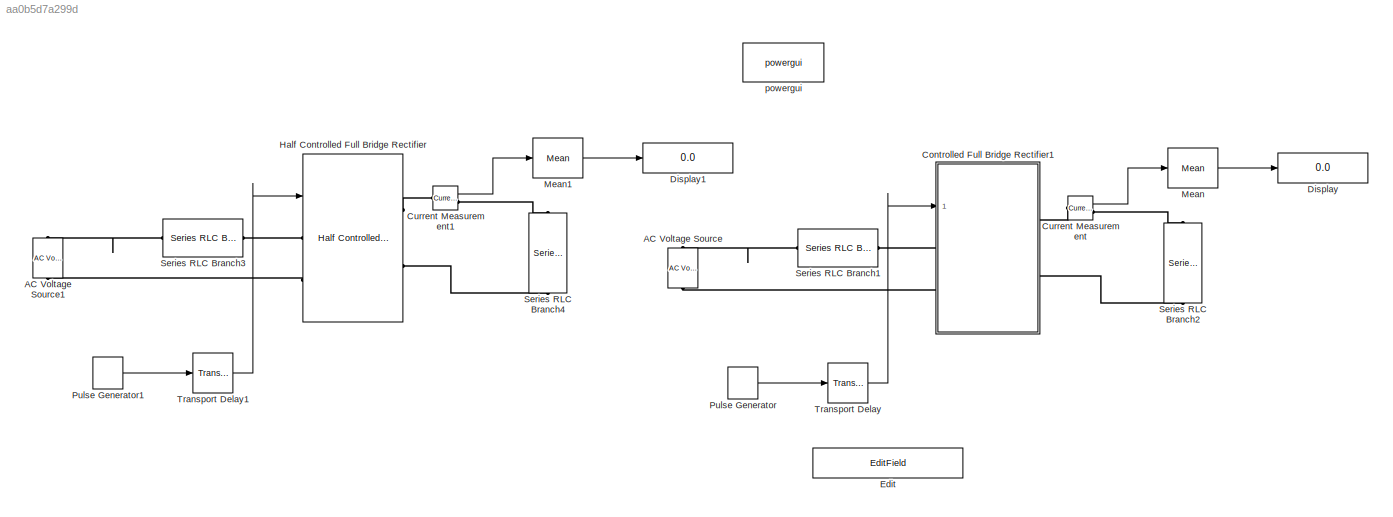
MODEL slx_aa0b5d7a299d
KIND model
CONFIG AbsTol = auto
CONFIG EnableMultiTasking = off
CONFIG FixedStep = auto
CONFIG MaxStep = auto
CONFIG MinStep = auto
CONFIG RelTol = 1e-3
CONFIG SampleTimeConstraint = Unconstrained
CONFIG Solver = FixedStepAuto
CONFIG SolverName = FixedStepAuto
CONFIG StartTime = 0.0
CONFIG StopTime = 10
BLOCK [Reference] AC Voltage Source  REF=powerlib/Electrical
Sources/AC Voltage Source
  Ports = [0, 0, 0, 0, 0, 1, 1]
  SourceBlock = powerlib/Electrical\nSources/AC Voltage Source
  SourceProductBaseCode = PS
  SourceProductName = Simscape Power Systems
  SourceType = AC Voltage Source
BLOCK [Reference] AC Voltage Source1  REF=powerlib/Electrical
Sources/AC Voltage Source
  Ports = [0, 0, 0, 0, 0, 1, 1]
  SourceBlock = powerlib/Electrical\nSources/AC Voltage Source
  SourceProductBaseCode = PS
  SourceProductName = Simscape Power Systems
  SourceType = AC Voltage Source
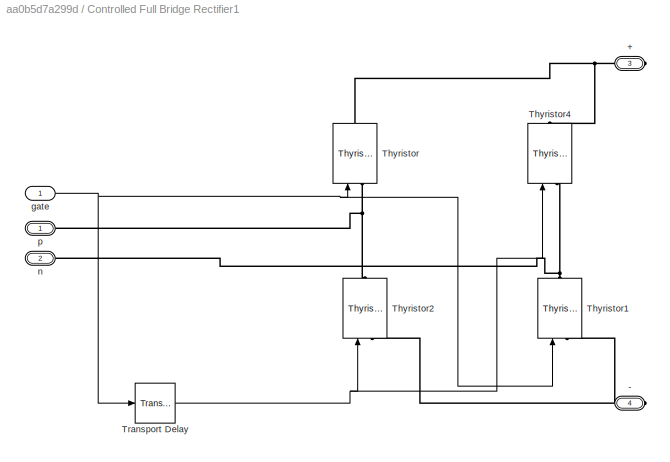
BLOCK [SubSystem] Controlled Full Bridge Rectifier1
  AncestorBlock = halfcontrolled/Controlled Full Bridge Rectifier
  Ports = [1, 0, 0, 0, 0, 2, 2]
  RequestExecContextInheritance = off
BLOCK [PMIOPort] Controlled Full Bridge Rectifier1/+
  Port = 3
  Side = Right
BLOCK [PMIOPort] Controlled Full Bridge Rectifier1/-
  Port = 4
  Side = Right
BLOCK [Reference] Controlled Full Bridge Rectifier1/Thyristor  REF=powerlib/Power
Electronics/Thyristor
  Ports = [1, 0, 0, 0, 0, 1, 1]
  SourceBlock = powerlib/Power\nElectronics/Thyristor
  SourceProductBaseCode = PS
  SourceProductName = Simscape Power Systems
  SourceType = Thyristor
BLOCK [Reference] Controlled Full Bridge Rectifier1/Thyristor1  REF=powerlib/Power
Electronics/Thyristor
  Ports = [1, 0, 0, 0, 0, 1, 1]
  SourceBlock = powerlib/Power\nElectronics/Thyristor
  SourceProductBaseCode = PS
  SourceProductName = Simscape Power Systems
  SourceType = Thyristor
BLOCK [Reference] Controlled Full Bridge Rectifier1/Thyristor2  REF=powerlib/Power
Electronics/Thyristor
  Ports = [1, 0, 0, 0, 0, 1, 1]
  SourceBlock = powerlib/Power\nElectronics/Thyristor
  SourceProductBaseCode = PS
  SourceProductName = Simscape Power Systems
  SourceType = Thyristor
BLOCK [Reference] Controlled Full Bridge Rectifier1/Thyristor4  REF=powerlib/Power
Electronics/Thyristor
  Ports = [1, 0, 0, 0, 0, 1, 1]
  SourceBlock = powerlib/Power\nElectronics/Thyristor
  SourceProductBaseCode = PS
  SourceProductName = Simscape Power Systems
  SourceType = Thyristor
BLOCK [TransportDelay] Controlled Full Bridge Rectifier1/Transport Delay
  DelayTime = 0.01
  Ports = [1, 1]
BLOCK [Inport] Controlled Full Bridge Rectifier1/gate
  IconDisplay = Port number
BLOCK [PMIOPort] Controlled Full Bridge Rectifier1/n
  Port = 2
  Side = Left
BLOCK [PMIOPort] Controlled Full Bridge Rectifier1/p
  Side = Left
BLOCK [Reference] Current Measurement  REF=powerlib/Measurements/Current Measurement
  Ports = [0, 1, 0, 0, 0, 1, 1]
  SourceBlock = powerlib/Measurements/Current Measurement
  SourceProductBaseCode = PS
  SourceProductName = Simscape Power Systems
  SourceType = Current Measurement
  UserDataPersistent = on
BLOCK [Reference] Current Measurement1  REF=powerlib/Measurements/Current Measurement
  Ports = [0, 1, 0, 0, 0, 1, 1]
  SourceBlock = powerlib/Measurements/Current Measurement
  SourceProductBaseCode = PS
  SourceProductName = Simscape Power Systems
  SourceType = Current Measurement
  UserDataPersistent = on
BLOCK [Display] Display
  Decimation = 1
  Ports = [1]
BLOCK [Display] Display1
  Decimation = 1
  Ports = [1]
BLOCK [EditField] Edit
  Alignment = Center
  LabelPosition = Hide
  WebBlockId = 182
BLOCK [Reference] Half Controlled Full Bridge Rectifier  REF=halfcontrolled/Half Controlled Full Bridge Rectifier
  Ports = [1, 0, 0, 0, 0, 2, 2]
  SourceBlock = halfcontrolled/Half Controlled Full Bridge Rectifier
  SourceType = SubSystem
BLOCK [Reference] Mean  REF=powerlib_meascontrol/Measurements/Mean
  Ports = [1, 1]
  SourceBlock = powerlib_meascontrol/Measurements/Mean
  SourceProductBaseCode = PS
  SourceProductName = Simscape Power Systems
  SourceType = Mean
BLOCK [Reference] Mean1  REF=powerlib_meascontrol/Measurements/Mean
  Ports = [1, 1]
  SourceBlock = powerlib_meascontrol/Measurements/Mean
  SourceProductBaseCode = PS
  SourceProductName = Simscape Power Systems
  SourceType = Mean
BLOCK [DiscretePulseGenerator] Pulse Generator
  Period = 0.02
  Ports = [0, 1]
  PulseType = Time based
  PulseWidth = 10
BLOCK [DiscretePulseGenerator] Pulse Generator1
  Period = 0.02
  Ports = [0, 1]
  PulseType = Time based
  PulseWidth = 10
BLOCK [Reference] Series RLC Branch1  REF=powerlib/Elements/Series RLC Branch
  Ports = [0, 0, 0, 0, 0, 1, 1]
  SourceBlock = powerlib/Elements/Series RLC Branch
  SourceProductBaseCode = PS
  SourceProductName = Simscape Power Systems
  SourceType = Series RLC Branch
BLOCK [Reference] Series RLC Branch2  REF=powerlib/Elements/Series RLC Branch
  Ports = [0, 0, 0, 0, 0, 1, 1]
  SourceBlock = powerlib/Elements/Series RLC Branch
  SourceProductBaseCode = PS
  SourceProductName = Simscape Power Systems
  SourceType = Series RLC Branch
BLOCK [Reference] Series RLC Branch3  REF=powerlib/Elements/Series RLC Branch
  Ports = [0, 0, 0, 0, 0, 1, 1]
  SourceBlock = powerlib/Elements/Series RLC Branch
  SourceProductBaseCode = PS
  SourceProductName = Simscape Power Systems
  SourceType = Series RLC Branch
BLOCK [Reference] Series RLC Branch4  REF=powerlib/Elements/Series RLC Branch
  Ports = [0, 0, 0, 0, 0, 1, 1]
  SourceBlock = powerlib/Elements/Series RLC Branch
  SourceProductBaseCode = PS
  SourceProductName = Simscape Power Systems
  SourceType = Series RLC Branch
BLOCK [TransportDelay] Transport Delay
  DelayTime = 0.02*37.53/360
  Ports = [1, 1]
BLOCK [TransportDelay] Transport Delay1
  DelayTime = 0.02*55/360
  Ports = [1, 1]
BLOCK [Reference] powergui  REF=powerlib/powergui
  Ports = []
  Priority = 1
  SourceBlock = powerlib/powergui
  SourceProductBaseCode = PS
  SourceProductName = Simscape Power Systems
  SourceType = PSB option menu block
LINE Current Measurement1:1 -> Mean1:1
LINE Current Measurement:1 -> Mean:1
LINE Mean1:1 -> Display1:1
LINE Mean:1 -> Display:1
LINE Pulse Generator1:1 -> Transport Delay1:1
LINE Pulse Generator:1 -> Transport Delay:1
LINE Transport Delay1:1 -> Half Controlled Full Bridge Rectifier:1
LINE Transport Delay:1 -> Controlled Full Bridge Rectifier1:1
PLINE AC Voltage Source1:LConn1 -- Half Controlled Full Bridge Rectifier:LConn2
PLINE AC Voltage Source1:RConn1 -- Series RLC Branch3:LConn1
PLINE AC Voltage Source:LConn1 -- Controlled Full Bridge Rectifier1:LConn2
PLINE AC Voltage Source:RConn1 -- Series RLC Branch1:LConn1
PLINE Controlled Full Bridge Rectifier1:LConn1 -- Series RLC Branch1:RConn1
PLINE Controlled Full Bridge Rectifier1:RConn1 -- Current Measurement:LConn1
PLINE Controlled Full Bridge Rectifier1:RConn2 -- Series RLC Branch2:RConn1
PLINE Current Measurement1:LConn1 -- Half Controlled Full Bridge Rectifier:RConn1
PLINE Current Measurement1:RConn1 -- Series RLC Branch4:LConn1
PLINE Current Measurement:RConn1 -- Series RLC Branch2:LConn1
PLINE Half Controlled Full Bridge Rectifier:LConn1 -- Series RLC Branch3:RConn1
PLINE Half Controlled Full Bridge Rectifier:RConn2 -- Series RLC Branch4:RConn1
